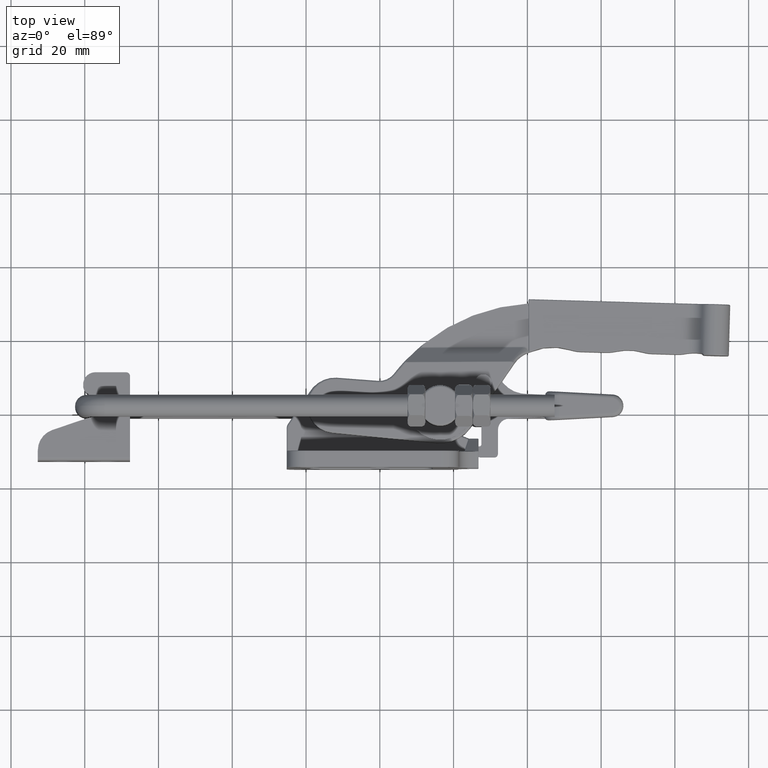
[diagram: clean part render]
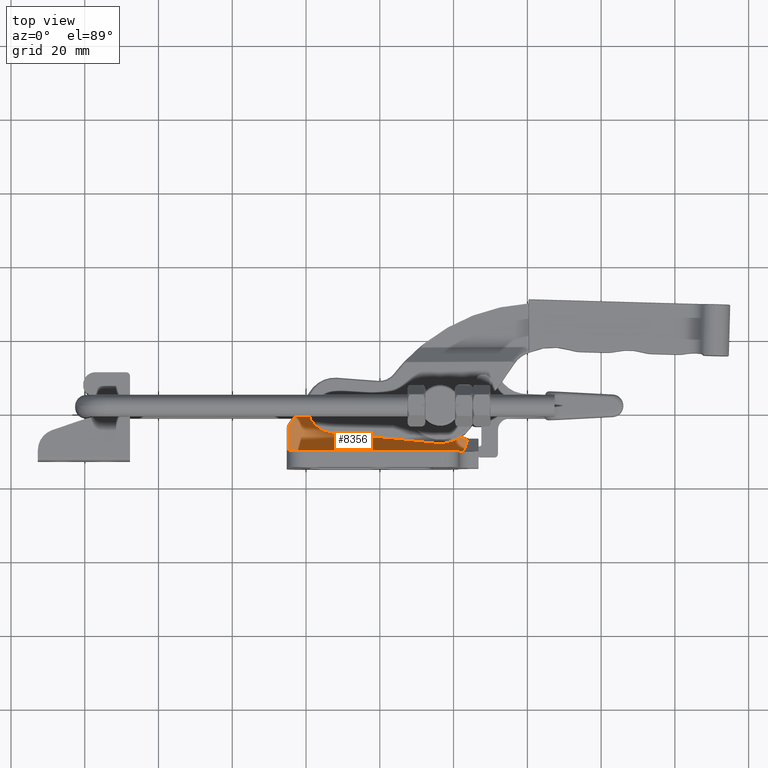
[diagram: same view with one face highlighted and labeled with its STEP entity id]
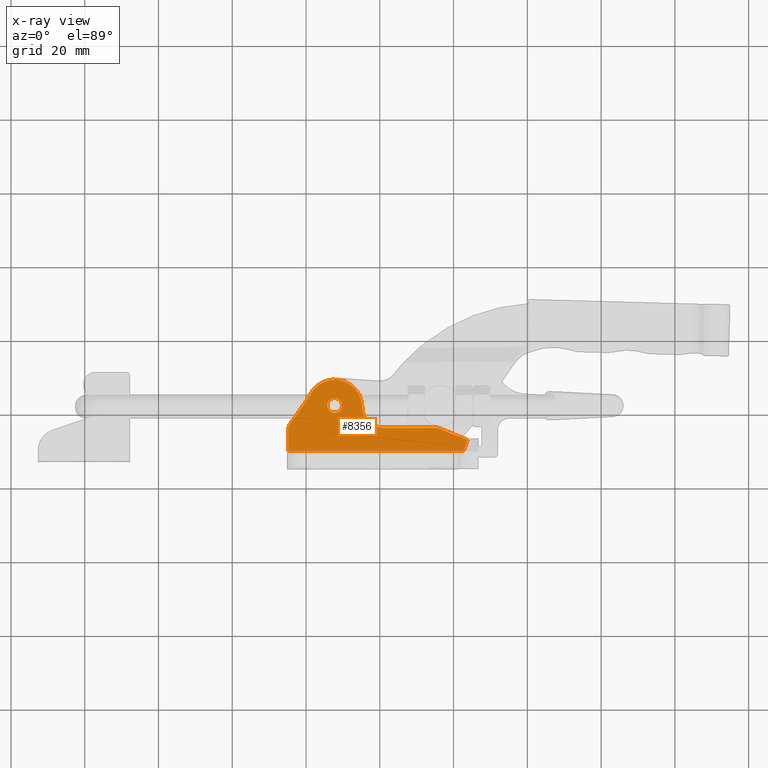
[diagram: x-ray of the same camera — body ghosted, the highlighted face saturated]
A machine part, top view. The second image highlights one B-rep face of the part: STEP entity #8356.
The next image is the same camera in x-ray: the body ghosted, the highlighted face saturated — about 0% of this face is hidden behind the body in this view.
In plain terms, the highlighted planar face has unit normal (0, 0, 1).
Its self-contained STEP definition (entity closure, byte-faithful):
#413=FACE_BOUND('',#2559,.T.);
#783=PLANE('',#8957);
#960=LINE('',#12571,#1402);
#961=LINE('',#12749,#1403);
#962=LINE('',#12783,#1404);
#964=LINE('',#12791,#1406);
#965=LINE('',#12795,#1407);
#966=LINE('',#12803,#1408);
#1402=VECTOR('',#10088,6.17766418819711);
#1403=VECTOR('',#10097,47.5010534740801);
#1404=VECTOR('',#10104,3.11080552920949);
#1406=VECTOR('',#10112,8.28394627930306);
#1407=VECTOR('',#10115,14.4035807078493);
#1408=VECTOR('',#10122,7.70392700307471);
#2026=FACE_OUTER_BOUND('',#2558,.T.);
#2558=EDGE_LOOP('',(#5922,#5923,#5924,#5925,#5926,#5927,#5928,#5929,#5930,
#5931,#5932));
#2559=EDGE_LOOP('',(#5933));
#3164=CIRCLE('',#8958,2.5);
#3165=CIRCLE('',#8959,5.5);
#3166=CIRCLE('',#8960,7.5);
#3167=CIRCLE('',#8961,30.5);
#3168=CIRCLE('',#8962,1.5);
#3169=CIRCLE('',#8963,2.);
#3690=VERTEX_POINT('',#12568);
#3691=VERTEX_POINT('',#12570);
#3692=VERTEX_POINT('',#12747);
#3694=VERTEX_POINT('',#12782);
#3697=VERTEX_POINT('',#12790);
#3698=VERTEX_POINT('',#12792);
#3699=VERTEX_POINT('',#12794);
#3700=VERTEX_POINT('',#12796);
#3701=VERTEX_POINT('',#12798);
#3702=VERTEX_POINT('',#12800);
#3703=VERTEX_POINT('',#12802);
#3704=VERTEX_POINT('',#12805);
#4546=EDGE_CURVE('',#3690,#3691,#960,.T.);
#4551=EDGE_CURVE('',#3692,#3690,#961,.T.);
#4554=EDGE_CURVE('',#3694,#3692,#962,.T.);
#4558=EDGE_CURVE('',#3697,#3694,#964,.T.);
#4559=EDGE_CURVE('',#3698,#3697,#3164,.T.);
#4560=EDGE_CURVE('',#3699,#3698,#965,.T.);
#4561=EDGE_CURVE('',#3700,#3699,#3165,.T.);
#4562=EDGE_CURVE('',#3701,#3700,#3166,.T.);
#4563=EDGE_CURVE('',#3702,#3701,#3167,.T.);
#4564=EDGE_CURVE('',#3703,#3702,#966,.T.);
#4565=EDGE_CURVE('',#3691,#3703,#3168,.T.);
#4566=EDGE_CURVE('',#3704,#3704,#3169,.T.);
#5922=ORIENTED_EDGE('',*,*,#4554,.F.);
#5923=ORIENTED_EDGE('',*,*,#4558,.F.);
#5924=ORIENTED_EDGE('',*,*,#4559,.F.);
#5925=ORIENTED_EDGE('',*,*,#4560,.F.);
#5926=ORIENTED_EDGE('',*,*,#4561,.F.);
#5927=ORIENTED_EDGE('',*,*,#4562,.F.);
#5928=ORIENTED_EDGE('',*,*,#4563,.F.);
#5929=ORIENTED_EDGE('',*,*,#4564,.F.);
#5930=ORIENTED_EDGE('',*,*,#4565,.F.);
#5931=ORIENTED_EDGE('',*,*,#4546,.F.);
#5932=ORIENTED_EDGE('',*,*,#4551,.F.);
#5933=ORIENTED_EDGE('',*,*,#4566,.F.);
#8356=ADVANCED_FACE('',(#2026,#413),#783,.T.);
#8957=AXIS2_PLACEMENT_3D('',#12789,#10110,#10111);
#8958=AXIS2_PLACEMENT_3D('',#12793,#10113,#10114);
#8959=AXIS2_PLACEMENT_3D('',#12797,#10116,#10117);
#8960=AXIS2_PLACEMENT_3D('',#12799,#10118,#10119);
#8961=AXIS2_PLACEMENT_3D('',#12801,#10120,#10121);
#8962=AXIS2_PLACEMENT_3D('',#12804,#10123,#10124);
#8963=AXIS2_PLACEMENT_3D('',#12806,#10125,#10126);
#10088=DIRECTION('',(0.,1.,-4.346056521081E-9));
#10097=DIRECTION('',(-1.,-7.530158207846E-9,3.46247808856E-10));
#10104=DIRECTION('',(-0.325568244895498,-0.945518544458894,3.34361674489498E-9));
#10110=DIRECTION('center_axis',(0.,0.,1.));
#10111=DIRECTION('ref_axis',(1.,0.,0.));
#10112=DIRECTION('',(0.923957509405014,-0.382495125216106,0.));
#10113=DIRECTION('center_axis',(0.,0.,-1.));
#10114=DIRECTION('ref_axis',(0.,1.,0.));
#10115=DIRECTION('',(1.,-6.215703339445E-14,0.));
#10116=DIRECTION('center_axis',(0.,0.,1.));
#10117=DIRECTION('ref_axis',(-1.,0.,0.));
#10118=DIRECTION('center_axis',(0.,0.,-1.));
#10119=DIRECTION('ref_axis',(-0.867869096178898,0.496792946706798,0.));
#10120=DIRECTION('center_axis',(0.,0.,1.));
#10121=DIRECTION('ref_axis',(0.823444161085297,-0.567397315445298,0.));
#10122=DIRECTION('',(0.567397315445298,0.823444161085297,0.));
#10123=DIRECTION('center_axis',(0.,0.,-1.));
#10124=DIRECTION('ref_axis',(-1.,0.,0.));
#10125=DIRECTION('center_axis',(0.,0.,1.));
#10126=DIRECTION('ref_axis',(1.,0.,0.));
#12568=CARTESIAN_POINT('',(-25.4999999999968,4.69999998430289,3.00000004027226));
#12570=CARTESIAN_POINT('',(-25.5,10.8776641725,3.));
#12571=CARTESIAN_POINT('',(-25.5,4.699999999681,3.000000026848));
#12747=CARTESIAN_POINT('',(22.0010534740833,4.70000036143477,3.00000000780002));
#12749=CARTESIAN_POINT('',(22.00105338644,4.700000357372,3.000000010401));
#12782=CARTESIAN_POINT('',(23.01383289334,7.641324704055,3.));
#12783=CARTESIAN_POINT('',(23.01383289334,7.641324704055,3.));
#12789=CARTESIAN_POINT('Origin',(0.,0.,3.));
#12790=CARTESIAN_POINT('',(15.35981852107,10.80989377344,3.));
#12791=CARTESIAN_POINT('',(15.35981852107,10.80989377344,3.));
#12792=CARTESIAN_POINT('',(14.40358070785,11.,3.));
#12793=CARTESIAN_POINT('Origin',(14.40358070785,8.5,3.));
#12794=CARTESIAN_POINT('',(6.833931568787E-13,11.,3.));
#12795=CARTESIAN_POINT('',(6.833931568787E-13,11.,3.));
#12796=CARTESIAN_POINT('',(-5.5,16.5,3.));
#12797=CARTESIAN_POINT('Origin',(0.,16.5,3.));
#12798=CARTESIAN_POINT('',(-19.50901822134,20.2259471003,3.));
#12799=CARTESIAN_POINT('Origin',(-13.,16.5,3.));
#12800=CARTESIAN_POINT('',(-20.8639787417,18.07251385378,3.));
#12801=CARTESIAN_POINT('Origin',(-45.9790256548,35.37813197486,3.));
#12802=CARTESIAN_POINT('',(-25.23516624163,11.72876014567,3.));
#12803=CARTESIAN_POINT('',(-25.23516624163,11.72876014567,3.));
#12804=CARTESIAN_POINT('Origin',(-24.,10.8776641725,3.));
#12805=CARTESIAN_POINT('',(-15.,17.,3.));
#12806=CARTESIAN_POINT('Origin',(-13.,17.,3.));